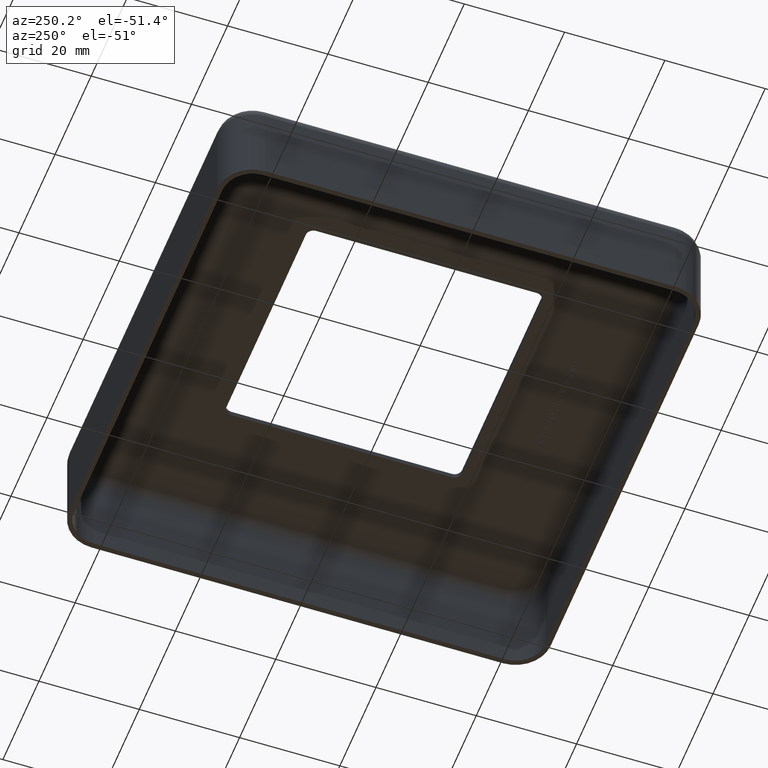
[diagram: clean part render]
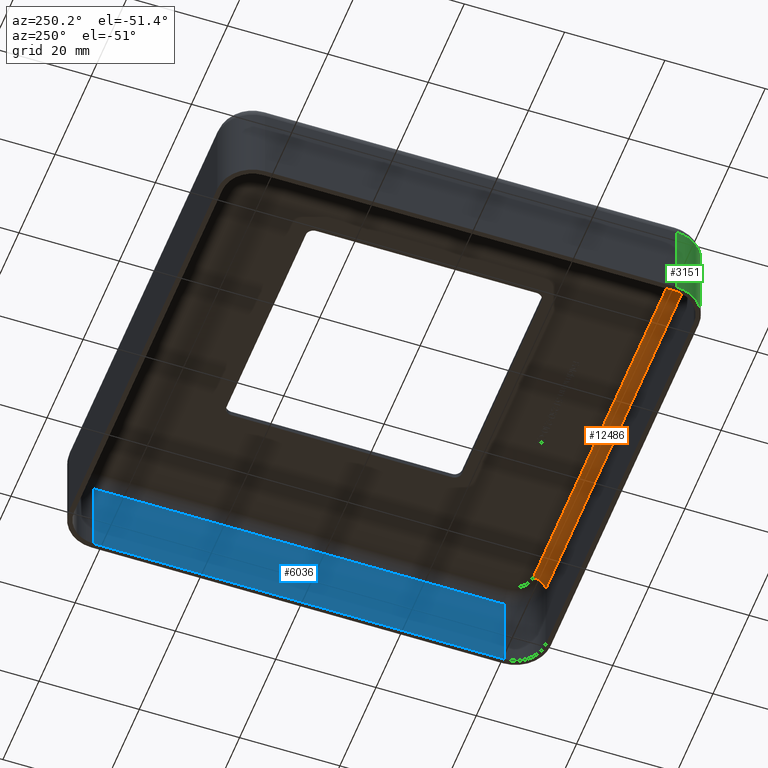
[diagram: same view with three faces highlighted in distinct colors, each labeled with its STEP entity id]
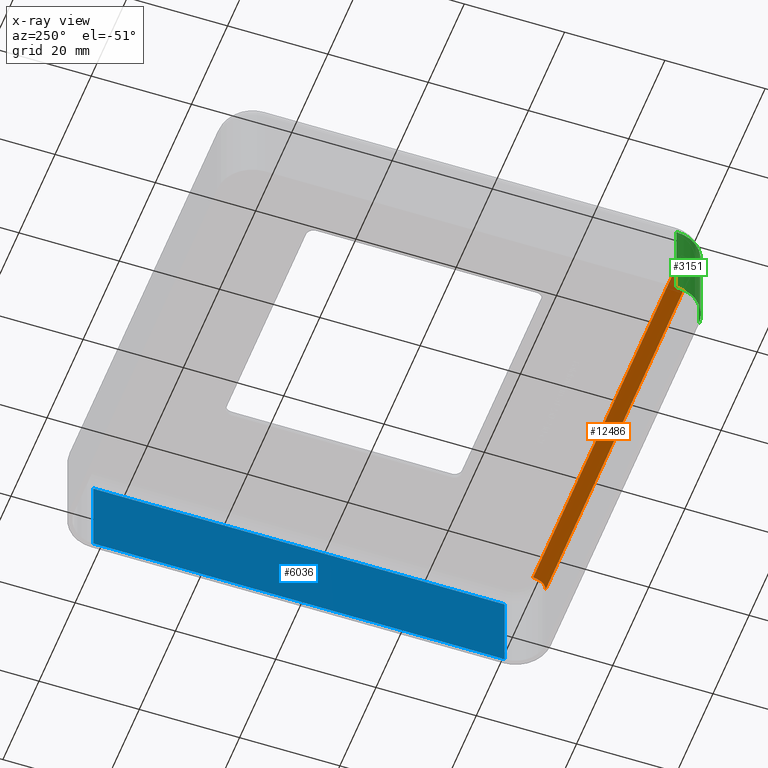
[diagram: x-ray of the same camera — body ghosted, the three highlighted faces saturated]
A machine part, auxiliary view with three faces highlighted in distinct colors.
The next image is the same camera in x-ray (body ghosted, the three faces saturated) — at least one of them is partly hidden behind the body in this view.
Their STEP definitions:

[orange] entity #12486 — the highlighted cylindrical surface (edge-blend (fillet) strip) has radius 2.5 mm, axis along (-1, 0, -0).
#113 = CARTESIAN_POINT ( 'NONE',  ( 40.99999999999999289, -44.50000000000000711, 16.50000000000000000 ) ) ;
#134 = FACE_OUTER_BOUND ( 'NONE', #11485, .T. ) ;
#162 = LINE ( 'NONE', #11219, #3543 ) ;
#268 = ORIENTED_EDGE ( 'NONE', *, *, #5283, .F. ) ;
#465 = DIRECTION ( 'NONE',  ( 1.000000000000000000, 0.000000000000000000, 0.000000000000000000 ) ) ;
#504 = CYLINDRICAL_SURFACE ( 'NONE', #659, 2.499999999999998668 ) ;
#538 = CIRCLE ( 'NONE', #6872, 2.499999999999998668 ) ;
#594 = ORIENTED_EDGE ( 'NONE', *, *, #7360, .F. ) ;
#659 = AXIS2_PLACEMENT_3D ( 'NONE', #9681, #10833, #9529 ) ;
#1515 = DIRECTION ( 'NONE',  ( 0.000000000000000000, 0.000000000000000000, 1.000000000000000000 ) ) ;
#1670 = VERTEX_POINT ( 'NONE', #14917 ) ;
#1775 = DIRECTION ( 'NONE',  ( 1.000000000000000000, -0.000000000000000000, 0.000000000000000000 ) ) ;
#2865 = CARTESIAN_POINT ( 'NONE',  ( -40.99999999999999289, -44.50000000000000711, 16.50000000000000000 ) ) ;
#3543 = VECTOR ( 'NONE', #4310, 1000.000000000000000 ) ;
#4310 = DIRECTION ( 'NONE',  ( -1.000000000000000000, -0.000000000000000000, 0.000000000000000000 ) ) ;
#4958 = CARTESIAN_POINT ( 'NONE',  ( 0.000000000000000000, -44.50000000000000711, 19.00000000000000000 ) ) ;
#5050 = VERTEX_POINT ( 'NONE', #6270 ) ;
#5279 = CARTESIAN_POINT ( 'NONE',  ( 40.99999999999999289, -47.00000000000000711, 16.50000000000000000 ) ) ;
#5283 = EDGE_CURVE ( 'NONE', #9027, #5050, #10813, .T. ) ;
#5397 = LINE ( 'NONE', #4958, #14767 ) ;
#5529 = EDGE_CURVE ( 'NONE', #1670, #5050, #5397, .T. ) ;
#5821 = ORIENTED_EDGE ( 'NONE', *, *, #10663, .T. ) ;
#5853 = DIRECTION ( 'NONE',  ( -1.000000000000000000, 0.000000000000000000, -0.000000000000000000 ) ) ;
#6270 = CARTESIAN_POINT ( 'NONE',  ( 41.00000000000000000, -44.50000000000000711, 19.00000000000000000 ) ) ;
#6328 = DIRECTION ( 'NONE',  ( 0.000000000000000000, 0.000000000000000000, 1.000000000000000000 ) ) ;
#6651 = CARTESIAN_POINT ( 'NONE',  ( -41.00000000000000000, -47.00000000000000711, 16.50000000000000000 ) ) ;
#6872 = AXIS2_PLACEMENT_3D ( 'NONE', #2865, #1775, #6328 ) ;
#7360 = EDGE_CURVE ( 'NONE', #1670, #8326, #538, .T. ) ;
#8326 = VERTEX_POINT ( 'NONE', #6651 ) ;
#9027 = VERTEX_POINT ( 'NONE', #5279 ) ;
#9529 = DIRECTION ( 'NONE',  ( 0.000000000000000000, 0.000000000000000000, 1.000000000000000000 ) ) ;
#9681 = CARTESIAN_POINT ( 'NONE',  ( 0.000000000000000000, -44.50000000000000711, 16.50000000000000000 ) ) ;
#10663 = EDGE_CURVE ( 'NONE', #9027, #8326, #162, .T. ) ;
#10813 = CIRCLE ( 'NONE', #14208, 2.499999999999998668 ) ;
#10833 = DIRECTION ( 'NONE',  ( -1.000000000000000000, 0.000000000000000000, -0.000000000000000000 ) ) ;
#11105 = ORIENTED_EDGE ( 'NONE', *, *, #5529, .T. ) ;
#11219 = CARTESIAN_POINT ( 'NONE',  ( -48.00000000000000000, -47.00000000000000711, 16.50000000000000000 ) ) ;
#11485 = EDGE_LOOP ( 'NONE', ( #5821, #594, #11105, #268 ) ) ;
#12486 = ADVANCED_FACE ( 'NONE', ( #134 ), #504, .F. ) ;
#14208 = AXIS2_PLACEMENT_3D ( 'NONE', #113, #5853, #1515 ) ;
#14767 = VECTOR ( 'NONE', #465, 1000.000000000000000 ) ;
#14917 = CARTESIAN_POINT ( 'NONE',  ( -40.99999999999999289, -44.50000000000000711, 19.00000000000000000 ) ) ;

[blue] entity #6036 — the highlighted planar face has unit normal (-1, -0, 0).
#920 = LINE ( 'NONE', #11345, #2514 ) ;
#955 = CARTESIAN_POINT ( 'NONE',  ( 47.00000000000000000, -41.00000000000000000, 20.00000000000000000 ) ) ;
#975 = EDGE_CURVE ( 'NONE', #12836, #12763, #6354, .T. ) ;
#2514 = VECTOR ( 'NONE', #12640, 1000.000000000000000 ) ;
#4326 = DIRECTION ( 'NONE',  ( 1.445602896647339163E-16, -1.000000000000000000, 0.000000000000000000 ) ) ;
#4350 = AXIS2_PLACEMENT_3D ( 'NONE', #6393, #5380, #14447 ) ;
#4409 = ORIENTED_EDGE ( 'NONE', *, *, #6417, .F. ) ;
#4536 = EDGE_LOOP ( 'NONE', ( #5763, #4409, #6997, #5865 ) ) ;
#5380 = DIRECTION ( 'NONE',  ( -1.000000000000000000, -1.445602896647339163E-16, 0.000000000000000000 ) ) ;
#5720 = CARTESIAN_POINT ( 'NONE',  ( 46.99999999999998579, 47.99999999999999289, 0.000000000000000000 ) ) ;
#5763 = ORIENTED_EDGE ( 'NONE', *, *, #9119, .F. ) ;
#5815 = VECTOR ( 'NONE', #12617, 1000.000000000000000 ) ;
#5865 = ORIENTED_EDGE ( 'NONE', *, *, #10961, .F. ) ;
#6003 = CARTESIAN_POINT ( 'NONE',  ( 47.00000000000000000, -41.00000000000000000, 0.000000000000000000 ) ) ;
#6036 = ADVANCED_FACE ( 'NONE', ( #7731 ), #9984, .T. ) ;
#6354 = LINE ( 'NONE', #5720, #5815 ) ;
#6393 = CARTESIAN_POINT ( 'NONE',  ( 46.99999999999998579, 47.99999999999999289, 20.00000000000000000 ) ) ;
#6417 = EDGE_CURVE ( 'NONE', #12763, #9564, #920, .T. ) ;
#6971 = CARTESIAN_POINT ( 'NONE',  ( 46.99999999999998579, 40.99999999999999289, 0.000000000000000000 ) ) ;
#6997 = ORIENTED_EDGE ( 'NONE', *, *, #975, .F. ) ;
#7731 = FACE_OUTER_BOUND ( 'NONE', #4536, .T. ) ;
#8926 = DIRECTION ( 'NONE',  ( -0.000000000000000000, -0.000000000000000000, -1.000000000000000000 ) ) ;
#9119 = EDGE_CURVE ( 'NONE', #9564, #13478, #9728, .T. ) ;
#9334 = LINE ( 'NONE', #955, #9701 ) ;
#9564 = VERTEX_POINT ( 'NONE', #14022 ) ;
#9701 = VECTOR ( 'NONE', #8926, 1000.000000000000000 ) ;
#9728 = LINE ( 'NONE', #14703, #11331 ) ;
#9984 = PLANE ( 'NONE',  #4350 ) ;
#10961 = EDGE_CURVE ( 'NONE', #13478, #12836, #9334, .T. ) ;
#11331 = VECTOR ( 'NONE', #4326, 1000.000000000000000 ) ;
#11345 = CARTESIAN_POINT ( 'NONE',  ( 46.99999999999998579, 40.99999999999999289, 20.00000000000000000 ) ) ;
#12617 = DIRECTION ( 'NONE',  ( -1.445602896647339163E-16, 1.000000000000000000, -0.000000000000000000 ) ) ;
#12640 = DIRECTION ( 'NONE',  ( 0.000000000000000000, 0.000000000000000000, 1.000000000000000000 ) ) ;
#12763 = VERTEX_POINT ( 'NONE', #6971 ) ;
#12836 = VERTEX_POINT ( 'NONE', #6003 ) ;
#13478 = VERTEX_POINT ( 'NONE', #13823 ) ;
#13823 = CARTESIAN_POINT ( 'NONE',  ( 47.00000000000000000, -41.00000000000000000, 16.50000000000000000 ) ) ;
#14022 = CARTESIAN_POINT ( 'NONE',  ( 46.99999999999998579, 40.99999999999998579, 16.50000000000000000 ) ) ;
#14447 = DIRECTION ( 'NONE',  ( 1.445602896647339163E-16, -1.000000000000000000, 0.000000000000000000 ) ) ;
#14703 = CARTESIAN_POINT ( 'NONE',  ( 46.99999999999998579, 47.99999999999999289, 16.50000000000000000 ) ) ;

[green] entity #3151 — the highlighted cylindrical surface (partial cylindrical patch) has radius 7 mm, axis along (-0, 0, -1).
#141 = AXIS2_PLACEMENT_3D ( 'NONE', #11715, #3657, #4818 ) ;
#380 = CIRCLE ( 'NONE', #141, 6.999999999999999112 ) ;
#636 = AXIS2_PLACEMENT_3D ( 'NONE', #10452, #8077, #9098 ) ;
#1443 = CARTESIAN_POINT ( 'NONE',  ( -48.00000000000000000, -41.00000000000000000, 0.000000000000000000 ) ) ;
#2391 = LINE ( 'NONE', #14566, #5428 ) ;
#2418 = DIRECTION ( 'NONE',  ( -1.000000000000000000, 0.000000000000000000, 0.000000000000000000 ) ) ;
#2424 = ORIENTED_EDGE ( 'NONE', *, *, #3499, .F. ) ;
#2485 = CARTESIAN_POINT ( 'NONE',  ( -41.00000000000000000, -48.00000000000000711, 0.000000000000000000 ) ) ;
#2619 = VERTEX_POINT ( 'NONE', #2485 ) ;
#2808 = EDGE_LOOP ( 'NONE', ( #8042, #2424, #12614, #2882 ) ) ;
#2882 = ORIENTED_EDGE ( 'NONE', *, *, #12737, .F. ) ;
#3087 = CIRCLE ( 'NONE', #636, 6.999999999999999112 ) ;
#3151 = ADVANCED_FACE ( 'NONE', ( #11015 ), #12623, .T. ) ;
#3499 = EDGE_CURVE ( 'NONE', #3615, #2619, #2391, .T. ) ;
#3615 = VERTEX_POINT ( 'NONE', #4485 ) ;
#3657 = DIRECTION ( 'NONE',  ( -0.000000000000000000, 0.000000000000000000, 1.000000000000000000 ) ) ;
#4485 = CARTESIAN_POINT ( 'NONE',  ( -41.00000000000000000, -48.00000000000000711, 16.50000000000000000 ) ) ;
#4818 = DIRECTION ( 'NONE',  ( 1.000000000000000000, 0.000000000000000000, 0.000000000000000000 ) ) ;
#5428 = VECTOR ( 'NONE', #6515, 1000.000000000000000 ) ;
#5906 = DIRECTION ( 'NONE',  ( -0.000000000000000000, 0.000000000000000000, -1.000000000000000000 ) ) ;
#6515 = DIRECTION ( 'NONE',  ( -0.000000000000000000, 0.000000000000000000, -1.000000000000000000 ) ) ;
#7640 = EDGE_CURVE ( 'NONE', #2619, #8197, #3087, .T. ) ;
#8042 = ORIENTED_EDGE ( 'NONE', *, *, #7640, .F. ) ;
#8077 = DIRECTION ( 'NONE',  ( 0.000000000000000000, -0.000000000000000000, -1.000000000000000000 ) ) ;
#8197 = VERTEX_POINT ( 'NONE', #1443 ) ;
#8222 = DIRECTION ( 'NONE',  ( 0.000000000000000000, -0.000000000000000000, 1.000000000000000000 ) ) ;
#8480 = EDGE_CURVE ( 'NONE', #13730, #3615, #380, .T. ) ;
#8943 = LINE ( 'NONE', #11593, #10557 ) ;
#9098 = DIRECTION ( 'NONE',  ( 1.000000000000000000, 0.000000000000000000, 0.000000000000000000 ) ) ;
#9959 = AXIS2_PLACEMENT_3D ( 'NONE', #12702, #5906, #2418 ) ;
#10452 = CARTESIAN_POINT ( 'NONE',  ( -41.00000000000000000, -41.00000000000000711, 0.000000000000000000 ) ) ;
#10557 = VECTOR ( 'NONE', #8222, 1000.000000000000000 ) ;
#11015 = FACE_OUTER_BOUND ( 'NONE', #2808, .T. ) ;
#11593 = CARTESIAN_POINT ( 'NONE',  ( -48.00000000000000000, -41.00000000000000000, 20.00000000000000000 ) ) ;
#11715 = CARTESIAN_POINT ( 'NONE',  ( -41.00000000000000000, -41.00000000000000711, 16.50000000000000000 ) ) ;
#11963 = CARTESIAN_POINT ( 'NONE',  ( -48.00000000000000000, -41.00000000000000000, 16.50000000000000000 ) ) ;
#12614 = ORIENTED_EDGE ( 'NONE', *, *, #8480, .F. ) ;
#12623 = CYLINDRICAL_SURFACE ( 'NONE', #9959, 6.999999999999999112 ) ;
#12702 = CARTESIAN_POINT ( 'NONE',  ( -41.00000000000000000, -41.00000000000000711, 20.00000000000000000 ) ) ;
#12737 = EDGE_CURVE ( 'NONE', #8197, #13730, #8943, .T. ) ;
#13730 = VERTEX_POINT ( 'NONE', #11963 ) ;
#14566 = CARTESIAN_POINT ( 'NONE',  ( -41.00000000000000000, -48.00000000000000711, 20.00000000000000000 ) ) ;